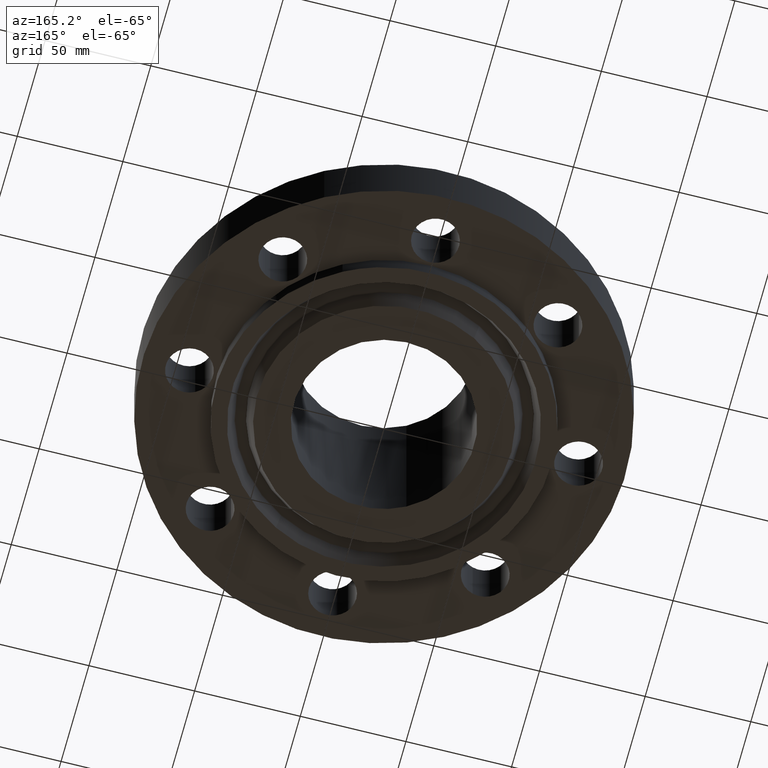
[diagram: clean part render]
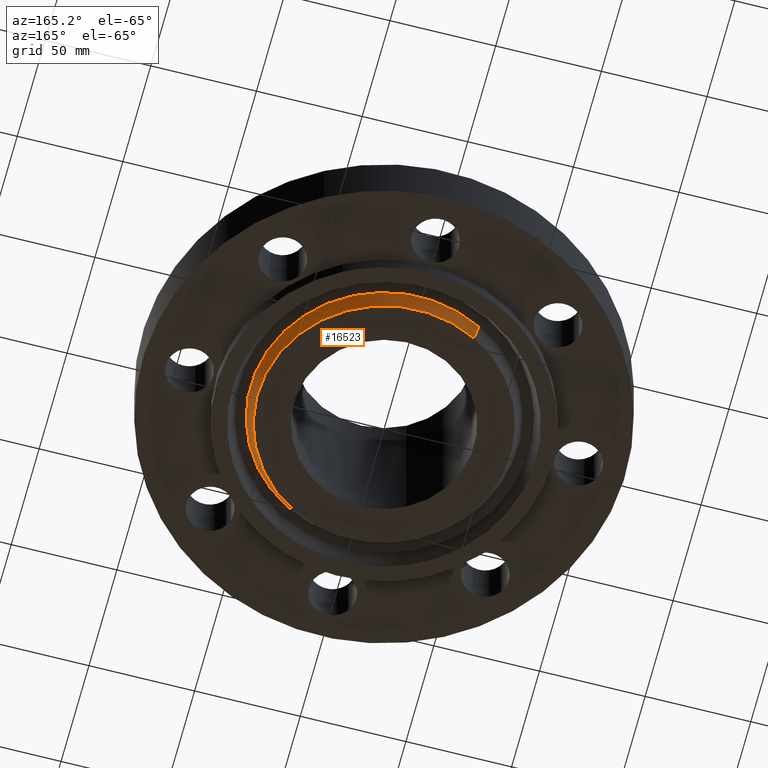
[diagram: same view with one face highlighted and labeled with its STEP entity id]
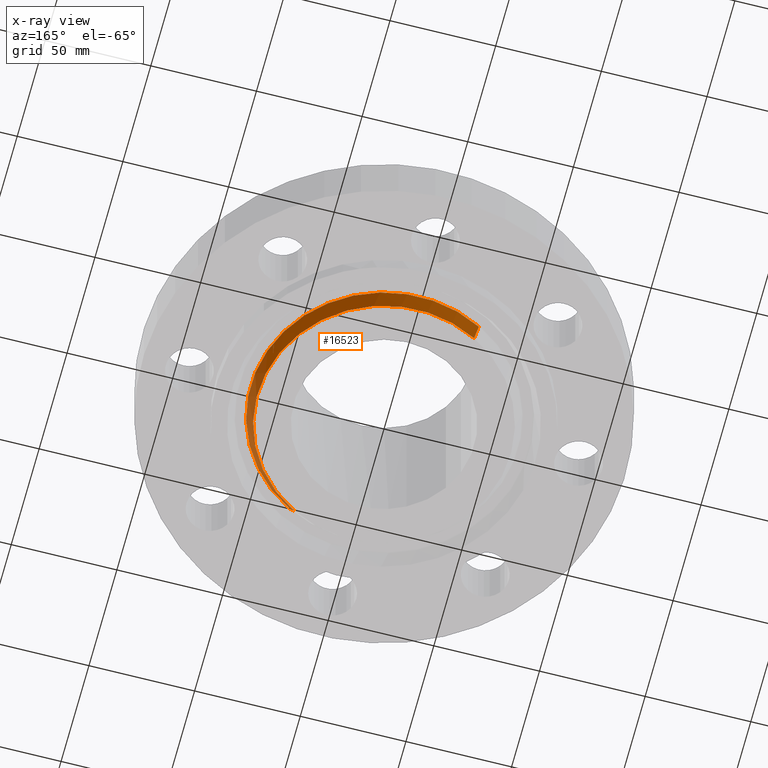
[diagram: x-ray of the same camera — body ghosted, the highlighted face saturated]
A machine part, auxiliary view. The second image highlights one B-rep face of the part: STEP entity #16523.
The next image is the same camera in x-ray: the body ghosted, the highlighted face saturated — about 0% of this face is hidden behind the body in this view.
In plain terms, the highlighted conical surface has half-angle 23 deg.
Its self-contained STEP definition (entity closure, byte-faithful):
#15953=AXIS2_PLACEMENT_3D('Circle Axis2P3D',#15951,#15952,$) ;
#16496=AXIS2_PLACEMENT_3D('Cone Axis2P3D',#16493,#16494,#16495) ;
#16514=AXIS2_PLACEMENT_3D('Circle Axis2P3D',#16512,#16513,$) ;
#15948=CARTESIAN_POINT('Vertex',(1.19105768194,-2.18021646263,-0.0188873350179)) ;
#15951=CARTESIAN_POINT('Axis2P3D Location',(0.,0.,-0.0188873350179)) ;
#15955=CARTESIAN_POINT('Vertex',(-1.19105768194,2.18021646263,-0.0188873350185)) ;
#16493=CARTESIAN_POINT('Axis2P3D Location',(0.,0.,-0.373000000001)) ;
#16498=CARTESIAN_POINT('Line Origine',(-1.16113112014,2.12543625871,-0.165943667508)) ;
#16502=CARTESIAN_POINT('Vertex',(-1.13120455838,2.0706560548,-0.313000000001)) ;
#16505=CARTESIAN_POINT('Line Origine',(1.16113112014,-2.12543625871,-0.165943667508)) ;
#16509=CARTESIAN_POINT('Vertex',(1.13120455838,-2.07065605475,-0.313000000001)) ;
#16512=CARTESIAN_POINT('Axis2P3D Location',(0.,0.,-0.313000000002)) ;
#15952=DIRECTION('Axis2P3D Direction',(0.,0.,0.0393700787402)) ;
#16494=DIRECTION('Axis2P3D Direction',(0.,0.,0.0393700787402)) ;
#16495=DIRECTION('Axis2P3D XDirection',(0.0188750212049,-0.0345504945626,0.)) ;
#16499=DIRECTION('Vector Direction',(-0.00737505833566,0.0134999537303,0.0362403485611)) ;
#16506=DIRECTION('Vector Direction',(0.00737505833566,-0.0134999537303,0.0362403485611)) ;
#16513=DIRECTION('Axis2P3D Direction',(0.,0.,0.0393700787402)) ;
#16500=VECTOR('Line Direction',#16499,0.0393700787402) ;
#16507=VECTOR('Line Direction',#16506,0.0393700787402) ;
#16518=ORIENTED_EDGE('',*,*,#16504,.F.) ;
#16519=ORIENTED_EDGE('',*,*,#15957,.F.) ;
#16520=ORIENTED_EDGE('',*,*,#16511,.T.) ;
#16521=ORIENTED_EDGE('',*,*,#16516,.F.) ;
#16523=ADVANCED_FACE('PartBody',(#16522),#16497,.T.) ;
#15954=CIRCLE('generated circle',#15953,2.48434341942) ;
#16515=CIRCLE('generated circle',#16514,2.35950000001) ;
#16497=CONICAL_SURFACE('Cone',#16496,2.33403151104,0.401425727959) ;
#15957=EDGE_CURVE('',#15949,#15956,#15954,.T.) ;
#16504=EDGE_CURVE('',#15956,#16503,#16501,.F.) ;
#16511=EDGE_CURVE('',#15949,#16510,#16508,.F.) ;
#16516=EDGE_CURVE('',#16503,#16510,#16515,.F.) ;
#16517=EDGE_LOOP('',(#16518,#16519,#16520,#16521)) ;
#16522=FACE_OUTER_BOUND('',#16517,.T.) ;
#16501=LINE('Line',#16498,#16500) ;
#16508=LINE('Line',#16505,#16507) ;
#15949=VERTEX_POINT('',#15948) ;
#15956=VERTEX_POINT('',#15955) ;
#16503=VERTEX_POINT('',#16502) ;
#16510=VERTEX_POINT('',#16509) ;